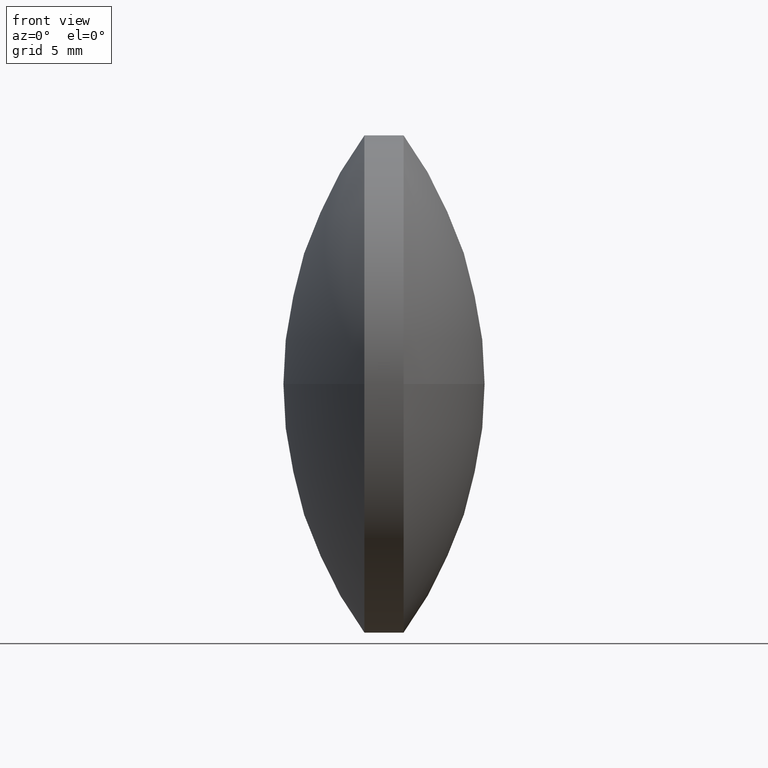
[diagram: clean part render]
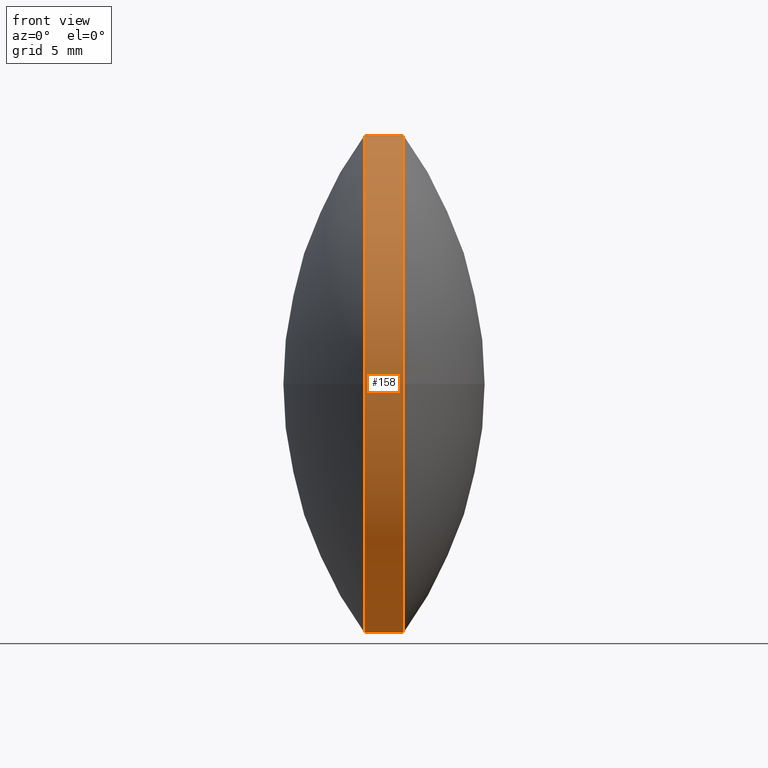
[diagram: same view with one face highlighted and labeled with its STEP entity id]
A machine part, front view. The second image highlights one B-rep face of the part: STEP entity #158.
In plain terms, the highlighted cylindrical surface (partial cylindrical patch) has radius 12.7 mm, axis along (-1, -0, -0).
Its self-contained STEP definition (entity closure, byte-faithful):
#5 = VERTEX_POINT ( 'NONE', #93 ) ;
#11 = EDGE_CURVE ( 'NONE', #5, #302, #306, .T. ) ;
#18 = CIRCLE ( 'NONE', #286, 12.69999999999999600 ) ;
#24 = ORIENTED_EDGE ( 'NONE', *, *, #11, .F. ) ;
#29 = VECTOR ( 'NONE', #266, 1000.000000000000000 ) ;
#42 = CARTESIAN_POINT ( 'NONE',  ( 85.45852234609111500, 48.61611302318478100, -12.69999999999999600 ) ) ;
#45 = CIRCLE ( 'NONE', #333, 12.69999999999999600 ) ;
#46 = VERTEX_POINT ( 'NONE', #42 ) ;
#47 = AXIS2_PLACEMENT_3D ( 'NONE', #307, #328, #159 ) ;
#51 = DIRECTION ( 'NONE',  ( 0.0000000000000000000, 0.0000000000000000000, 1.000000000000000000 ) ) ;
#54 = ORIENTED_EDGE ( 'NONE', *, *, #59, .T. ) ;
#59 = EDGE_CURVE ( 'NONE', #299, #302, #100, .T. ) ;
#63 = LINE ( 'NONE', #300, #117 ) ;
#64 = DIRECTION ( 'NONE',  ( -1.000000000000000000, -0.0000000000000000000, -0.0000000000000000000 ) ) ;
#72 = ORIENTED_EDGE ( 'NONE', *, *, #322, .T. ) ;
#74 = AXIS2_PLACEMENT_3D ( 'NONE', #92, #207, #174 ) ;
#85 = FACE_OUTER_BOUND ( 'NONE', #240, .T. ) ;
#89 = VERTEX_POINT ( 'NONE', #146 ) ;
#92 = CARTESIAN_POINT ( 'NONE',  ( 85.45852234609111500, 48.61611302318478100, 0.0000000000000000000 ) ) ;
#93 = CARTESIAN_POINT ( 'NONE',  ( 85.45852234609111500, 35.91611302318478500, -1.555301434917138400E-015 ) ) ;
#100 = LINE ( 'NONE', #237, #29 ) ;
#101 = DIRECTION ( 'NONE',  ( -1.000000000000000000, -0.0000000000000000000, -0.0000000000000000000 ) ) ;
#117 = VECTOR ( 'NONE', #101, 1000.000000000000000 ) ;
#122 = CARTESIAN_POINT ( 'NONE',  ( 79.30540135083715800, 48.61611302318478100, 0.0000000000000000000 ) ) ;
#140 = DIRECTION ( 'NONE',  ( -1.000000000000000000, -0.0000000000000000000, -0.0000000000000000000 ) ) ;
#141 = CARTESIAN_POINT ( 'NONE',  ( 87.45786520323396500, 48.61611302318478100, 12.69999999999999600 ) ) ;
#146 = CARTESIAN_POINT ( 'NONE',  ( 87.45786520323396500, 35.91611302318478500, -1.555301434917138000E-015 ) ) ;
#158 = ADVANCED_FACE ( 'NONE', ( #85 ), #186, .T. ) ;
#159 = DIRECTION ( 'NONE',  ( 0.0000000000000000000, 0.0000000000000000000, 1.000000000000000000 ) ) ;
#166 = CARTESIAN_POINT ( 'NONE',  ( 87.45786520323396500, 48.61611302318478100, 0.0000000000000000000 ) ) ;
#174 = DIRECTION ( 'NONE',  ( 0.0000000000000000000, 0.0000000000000000000, 1.000000000000000000 ) ) ;
#182 = ORIENTED_EDGE ( 'NONE', *, *, #253, .F. ) ;
#186 = CYLINDRICAL_SURFACE ( 'NONE', #268, 12.69999999999999600 ) ;
#193 = VERTEX_POINT ( 'NONE', #242 ) ;
#194 = DIRECTION ( 'NONE',  ( 0.0000000000000000000, 0.0000000000000000000, 1.000000000000000000 ) ) ;
#195 = CARTESIAN_POINT ( 'NONE',  ( 87.45786520323396500, 48.61611302318478100, 0.0000000000000000000 ) ) ;
#207 = DIRECTION ( 'NONE',  ( -1.000000000000000000, -0.0000000000000000000, -0.0000000000000000000 ) ) ;
#223 = DIRECTION ( 'NONE',  ( -1.000000000000000000, -0.0000000000000000000, -0.0000000000000000000 ) ) ;
#234 = ORIENTED_EDGE ( 'NONE', *, *, #338, .T. ) ;
#237 = CARTESIAN_POINT ( 'NONE',  ( 79.30540135083715800, 48.61611302318478100, 12.69999999999999600 ) ) ;
#240 = EDGE_LOOP ( 'NONE', ( #182, #72, #234, #54, #24, #261 ) ) ;
#242 = CARTESIAN_POINT ( 'NONE',  ( 87.45786520323396500, 48.61611302318478100, -12.69999999999999600 ) ) ;
#253 = EDGE_CURVE ( 'NONE', #193, #46, #63, .T. ) ;
#261 = ORIENTED_EDGE ( 'NONE', *, *, #301, .F. ) ;
#263 = DIRECTION ( 'NONE',  ( 0.0000000000000000000, 0.0000000000000000000, 1.000000000000000000 ) ) ;
#266 = DIRECTION ( 'NONE',  ( -1.000000000000000000, -0.0000000000000000000, -0.0000000000000000000 ) ) ;
#268 = AXIS2_PLACEMENT_3D ( 'NONE', #122, #64, #263 ) ;
#277 = CIRCLE ( 'NONE', #47, 12.69999999999999600 ) ;
#286 = AXIS2_PLACEMENT_3D ( 'NONE', #195, #223, #51 ) ;
#299 = VERTEX_POINT ( 'NONE', #141 ) ;
#300 = CARTESIAN_POINT ( 'NONE',  ( 79.30540135083715800, 48.61611302318478100, -12.69999999999999600 ) ) ;
#301 = EDGE_CURVE ( 'NONE', #46, #5, #277, .T. ) ;
#302 = VERTEX_POINT ( 'NONE', #324 ) ;
#306 = CIRCLE ( 'NONE', #74, 12.69999999999999600 ) ;
#307 = CARTESIAN_POINT ( 'NONE',  ( 85.45852234609111500, 48.61611302318478100, 0.0000000000000000000 ) ) ;
#322 = EDGE_CURVE ( 'NONE', #193, #89, #18, .T. ) ;
#324 = CARTESIAN_POINT ( 'NONE',  ( 85.45852234609111500, 48.61611302318478100, 12.69999999999999600 ) ) ;
#328 = DIRECTION ( 'NONE',  ( -1.000000000000000000, -0.0000000000000000000, -0.0000000000000000000 ) ) ;
#333 = AXIS2_PLACEMENT_3D ( 'NONE', #166, #140, #194 ) ;
#338 = EDGE_CURVE ( 'NONE', #89, #299, #45, .T. ) ;